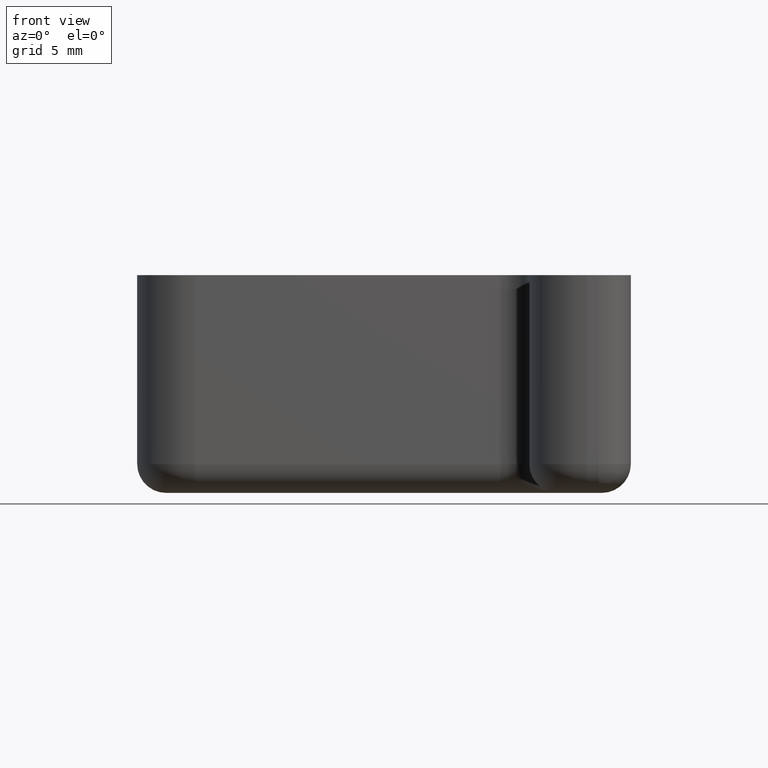
[diagram: clean part render]
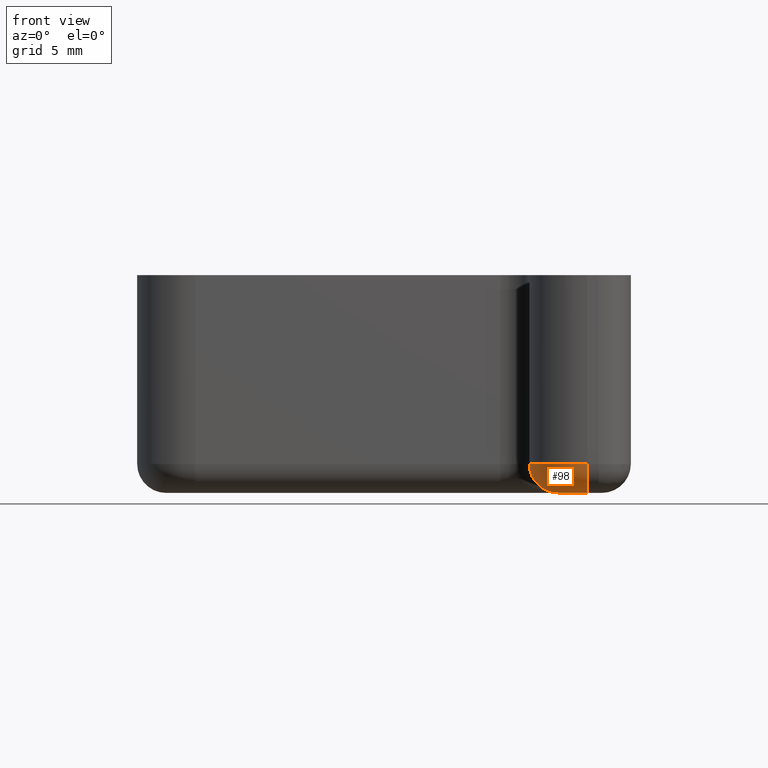
[diagram: same view with one face highlighted and labeled with its STEP entity id]
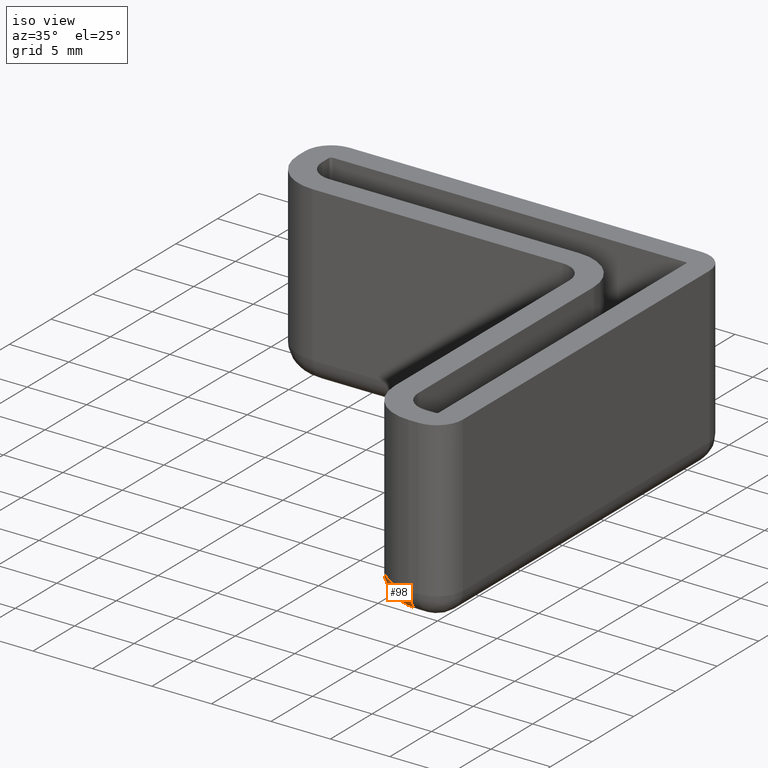
[diagram: same view with one face highlighted and labeled with its STEP entity id]
A machine part, front view. The second image highlights one B-rep face of the part: STEP entity #98.
A second angle (iso view) of the same face is appended — the face is thin or edge-on in the first view.
In plain terms, the highlighted toroidal blend (fillet) surface has major radius 2 mm and minor (blend) radius 2 mm.
Its self-contained STEP definition (entity closure, byte-faithful):
#98 = ADVANCED_FACE( '', ( #162 ), #163, .T. );
#162 = FACE_OUTER_BOUND( '', #307, .T. );
#163 = TOROIDAL_SURFACE( '', #308, 2.00000000000000, 2.00000000000000 );
#307 = EDGE_LOOP( '', ( #527, #528, #529, #530 ) );
#308 = AXIS2_PLACEMENT_3D( '', #531, #532, #533 );
#527 = ORIENTED_EDGE( '', *, *, #721, .T. );
#528 = ORIENTED_EDGE( '', *, *, #706, .F. );
#529 = ORIENTED_EDGE( '', *, *, #719, .F. );
#530 = ORIENTED_EDGE( '', *, *, #699, .F. );
#531 = CARTESIAN_POINT( '', ( -1.00000000000001, -28.0000000000000, -13.0000000000000 ) );
#532 = DIRECTION( '', ( 0.000000000000000, 0.000000000000000, 1.00000000000000 ) );
#533 = DIRECTION( '', ( -1.00000000000000, 1.22460635382238E-016, 0.000000000000000 ) );
#699 = EDGE_CURVE( '', #839, #842, #843, .T. );
#706 = EDGE_CURVE( '', #853, #855, #856, .F. );
#719 = EDGE_CURVE( '', #842, #853, #875, .T. );
#721 = EDGE_CURVE( '', #839, #855, #877, .T. );
#839 = VERTEX_POINT( '', #1030 );
#842 = VERTEX_POINT( '', #1035 );
#843 = CIRCLE( '', #1036, 4.00000000000000 );
#853 = VERTEX_POINT( '', #1049 );
#855 = VERTEX_POINT( '', #1052 );
#856 = CIRCLE( '', #1053, 2.00000000000000 );
#875 = CIRCLE( '', #1076, 2.00000000000000 );
#877 = CIRCLE( '', #1078, 2.00000000000000 );
#1030 = CARTESIAN_POINT( '', ( -5.00000000000001, -28.0000000000000, -13.0000000000000 ) );
#1035 = CARTESIAN_POINT( '', ( -1.00000000000001, -32.0000000000000, -13.0000000000000 ) );
#1036 = AXIS2_PLACEMENT_3D( '', #1207, #1208, #1209 );
#1049 = CARTESIAN_POINT( '', ( -1.00000000000001, -30.0000000000000, -15.0000000000000 ) );
#1052 = CARTESIAN_POINT( '', ( -3.00000000000000, -28.0000000000000, -15.0000000000000 ) );
#1053 = AXIS2_PLACEMENT_3D( '', #1220, #1221, #1222 );
#1076 = AXIS2_PLACEMENT_3D( '', #1251, #1252, #1253 );
#1078 = AXIS2_PLACEMENT_3D( '', #1257, #1258, #1259 );
#1207 = CARTESIAN_POINT( '', ( -1.00000000000001, -28.0000000000000, -13.0000000000000 ) );
#1208 = DIRECTION( '', ( 0.000000000000000, 0.000000000000000, 1.00000000000000 ) );
#1209 = DIRECTION( '', ( -1.00000000000000, 1.22460635382238E-016, 0.000000000000000 ) );
#1220 = CARTESIAN_POINT( '', ( -1.00000000000001, -28.0000000000000, -15.0000000000000 ) );
#1221 = DIRECTION( '', ( 0.000000000000000, 0.000000000000000, 1.00000000000000 ) );
#1222 = DIRECTION( '', ( -1.00000000000000, 1.22460635382238E-016, 0.000000000000000 ) );
#1251 = CARTESIAN_POINT( '', ( -1.00000000000001, -30.0000000000000, -13.0000000000000 ) );
#1252 = DIRECTION( '', ( 1.00000000000000, -1.96560432860759E-015, -1.84314369322536E-015 ) );
#1253 = DIRECTION( '', ( 1.84314369322536E-015, -2.25712547773141E-031, 1.00000000000000 ) );
#1257 = CARTESIAN_POINT( '', ( -3.00000000000000, -28.0000000000000, -13.0000000000000 ) );
#1258 = DIRECTION( '', ( -1.22460635382238E-016, -1.00000000000000, 0.000000000000000 ) );
#1259 = DIRECTION( '', ( 0.000000000000000, 0.000000000000000, 1.00000000000000 ) );